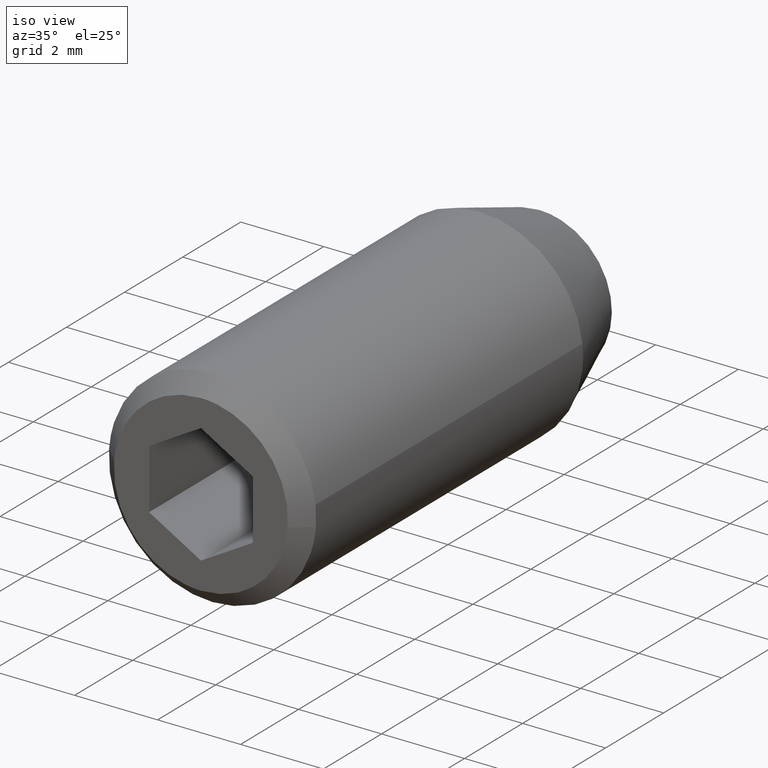
[diagram: clean part render]
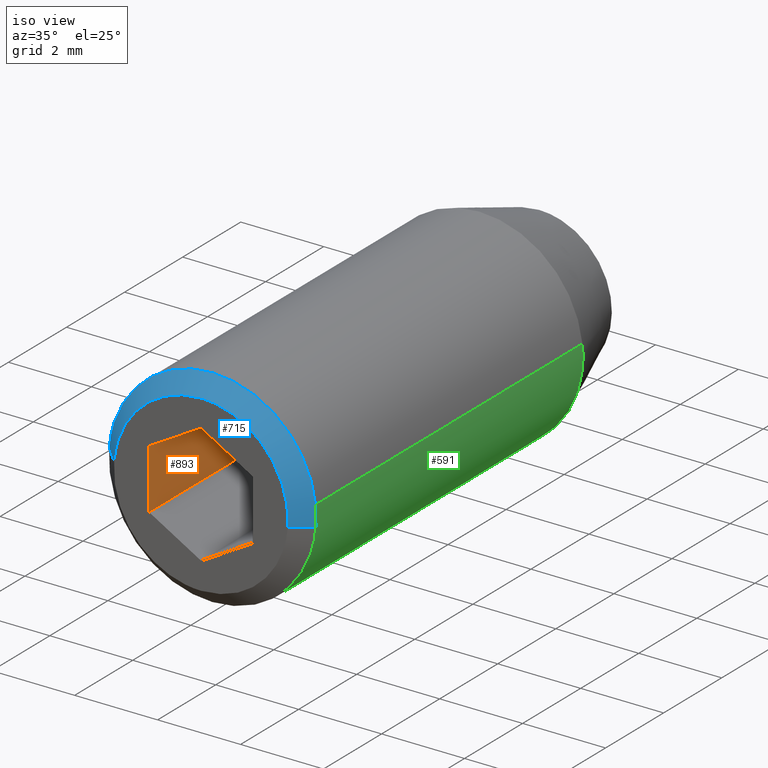
[diagram: same view with three faces highlighted in distinct colors, each labeled with its STEP entity id]
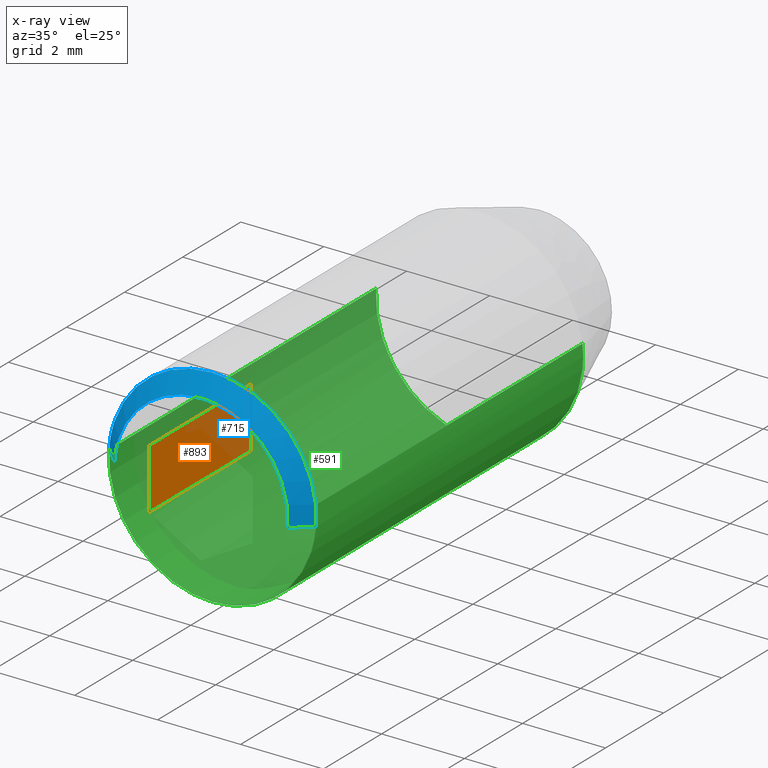
[diagram: x-ray of the same camera — body ghosted, the three highlighted faces saturated]
A machine part, iso view with three faces highlighted in distinct colors.
The next image is the same camera in x-ray (body ghosted, the three faces saturated) — at least one of them is partly hidden behind the body in this view.
Their STEP definitions:

[orange] entity #893 — the highlighted face is a freeform B-spline surface patch.
#735=CARTESIAN_POINT('',(-1.250000000000000,-8.149999999999999,0.721688000000000));
#736=VERTEX_POINT('',#735);
#742=CARTESIAN_POINT('',(-1.250000000000000,-8.149999999999999,-0.721688000000000));
#743=VERTEX_POINT('',#742);
#744=CARTESIAN_POINT('',(-1.250000000000000,-8.149999999999999,0.721688000000000));
#745=CARTESIAN_POINT('',(-1.250000000000000,-8.149999999999999,-0.721688000000000));
#746=QUASI_UNIFORM_CURVE('',1,(#744,#745),.UNSPECIFIED.,.F.,.U.);
#747=EDGE_CURVE('',#736,#743,#746,.T.);
#855=CARTESIAN_POINT('',(-1.250000000000000,-11.650000000000000,-0.721688000000000));
#856=VERTEX_POINT('',#855);
#864=CARTESIAN_POINT('',(-1.250000000000000,-8.149999999999999,-0.721688000000000));
#865=CARTESIAN_POINT('',(-1.250000000000000,-11.650000000000000,-0.721688000000000));
#866=QUASI_UNIFORM_CURVE('',1,(#864,#865),.UNSPECIFIED.,.F.,.U.);
#867=EDGE_CURVE('',#743,#856,#866,.T.);
#872=CARTESIAN_POINT('',(-1.250000000000000,-11.824824611454829,-0.793784596146942));
#873=CARTESIAN_POINT('',(-1.250000000000000,-11.824824611454829,0.793784557432581));
#874=CARTESIAN_POINT('',(-1.250000000000000,-7.975174668819083,-0.793784596146942));
#875=CARTESIAN_POINT('',(-1.250000000000000,-7.975174668819083,0.793784557432581));
#876=B_SPLINE_SURFACE_WITH_KNOTS('',1,1,((#872,#874),(#873,#875)),.UNSPECIFIED.,.F.,.F.,.U.,(2,2),(2,2),(0.041708353571221,0.958291624077037),(0.0,3.849649942635750),.UNSPECIFIED.);
#877=CARTESIAN_POINT('',(-1.250000000000000,-11.650000000000000,0.721688000000000));
#878=VERTEX_POINT('',#877);
#879=CARTESIAN_POINT('',(-1.250000000000000,-11.650000000000000,0.721688000000000));
#880=CARTESIAN_POINT('',(-1.250000000000000,-11.650000000000000,-0.721688000000000));
#881=QUASI_UNIFORM_CURVE('',1,(#879,#880),.UNSPECIFIED.,.F.,.U.);
#882=EDGE_CURVE('',#878,#856,#881,.T.);
#883=ORIENTED_EDGE('',*,*,#882,.T.);
#884=ORIENTED_EDGE('',*,*,#867,.F.);
#885=ORIENTED_EDGE('',*,*,#747,.F.);
#886=CARTESIAN_POINT('',(-1.250000000000000,-8.149999999999999,0.721688000000000));
#887=CARTESIAN_POINT('',(-1.250000000000000,-11.650000000000000,0.721688000000000));
#888=QUASI_UNIFORM_CURVE('',1,(#886,#887),.UNSPECIFIED.,.F.,.U.);
#889=EDGE_CURVE('',#736,#878,#888,.T.);
#890=ORIENTED_EDGE('',*,*,#889,.T.);
#891=EDGE_LOOP('',(#883,#884,#885,#890));
#892=FACE_OUTER_BOUND('',#891,.T.);
#893=ADVANCED_FACE('',(#892),#876,.F.);

[blue] entity #715 — the highlighted face is a freeform B-spline surface patch.
#453=CARTESIAN_POINT('',(2.483672983588568,-11.250000000000000,0.285251661857136));
#454=VERTEX_POINT('',#453);
#455=CARTESIAN_POINT('',(0.0,-11.250000000000000,2.500000000000000));
#456=VERTEX_POINT('',#455);
#457=CARTESIAN_POINT('',(2.483672983588568,-11.249999999999998,0.285251661857136));
#458=CARTESIAN_POINT('',(2.229307514286017,-11.249999999999996,2.500000000000000));
#459=CARTESIAN_POINT('',(0.0,-11.250000000000000,2.500000000000000));
#467=(BOUNDED_CURVE()B_SPLINE_CURVE(2,(#457,#458,#459),.UNSPECIFIED.,.F.,.U.)B_SPLINE_CURVE_WITH_KNOTS((3,3),(0.269767755877459,0.500000000000000),.UNSPECIFIED.)CURVE()GEOMETRIC_REPRESENTATION_ITEM()RATIONAL_B_SPLINE_CURVE((0.957343736458988,0.730266147777218,1.0))REPRESENTATION_ITEM(''));
#468=EDGE_CURVE('',#454,#456,#467,.T.);
#484=CARTESIAN_POINT('',(-2.492293334333711,-11.249999999997771,0.196147739336746));
#485=VERTEX_POINT('',#484);
#499=CARTESIAN_POINT('',(0.0,-11.250000000000000,2.500000000000000));
#500=CARTESIAN_POINT('',(-2.310976229113979,-11.249999999999998,2.500000000000000));
#501=CARTESIAN_POINT('',(-2.492293334333711,-11.249999999997765,0.196147739336746));
#509=(BOUNDED_CURVE()B_SPLINE_CURVE(2,(#499,#500,#501),.UNSPECIFIED.,.F.,.U.)B_SPLINE_CURVE_WITH_KNOTS((3,3),(0.500000000000000,0.736331300630435),.UNSPECIFIED.)CURVE()GEOMETRIC_REPRESENTATION_ITEM()RATIONAL_B_SPLINE_CURVE((1.0,0.723120658607929,0.969723356166948))REPRESENTATION_ITEM(''));
#510=EDGE_CURVE('',#456,#485,#509,.T.);
#537=CARTESIAN_POINT('',(2.492293334333710,-11.249999999997771,-0.196147739336747));
#538=VERTEX_POINT('',#537);
#539=CARTESIAN_POINT('',(2.492293334333709,-11.249999999997767,-0.196147739336747));
#540=CARTESIAN_POINT('',(2.500000000000000,-11.250000000000002,-0.098225267536211));
#541=CARTESIAN_POINT('',(2.500000000000000,-11.250000000000000,-5.143347E-016));
#542=CARTESIAN_POINT('',(2.500000000000000,-11.249999999999996,0.143093087569527));
#543=CARTESIAN_POINT('',(2.483672983588568,-11.249999999999998,0.285251661857136));
#551=(BOUNDED_CURVE()B_SPLINE_CURVE(2,(#539,#540,#541,#542,#543),.UNSPECIFIED.,.F.,.U.)B_SPLINE_CURVE_WITH_KNOTS((3,2,3),(0.236331300630434,0.250000000000000,0.269767755877459),.UNSPECIFIED.)CURVE()GEOMETRIC_REPRESENTATION_ITEM()RATIONAL_B_SPLINE_CURVE((0.969723356166947,0.983986122578618,1.0,0.976840633409330,0.957343736458988))REPRESENTATION_ITEM(''));
#552=EDGE_CURVE('',#538,#454,#551,.T.);
#611=CARTESIAN_POINT('',(2.093526400839668,-11.649999999999750,-0.164764101030382));
#612=VERTEX_POINT('',#611);
#613=CARTESIAN_POINT('',(2.093526400839668,-11.649999999999750,-0.164764101030382));
#614=CARTESIAN_POINT('',(2.492293334333710,-11.249999999997771,-0.196147739336747));
#615=QUASI_UNIFORM_CURVE('',1,(#613,#614),.UNSPECIFIED.,.F.,.U.);
#616=EDGE_CURVE('',#612,#538,#615,.T.);
#633=CARTESIAN_POINT('',(-2.093526400839669,-11.649999999999750,0.164764101030380));
#634=VERTEX_POINT('',#633);
#650=CARTESIAN_POINT('',(-2.093526400839669,-11.649999999999750,0.164764101030380));
#651=CARTESIAN_POINT('',(-2.492293334333711,-11.249999999997771,0.196147739336746));
#652=QUASI_UNIFORM_CURVE('',1,(#650,#651),.UNSPECIFIED.,.F.,.U.);
#653=EDGE_CURVE('',#634,#485,#652,.T.);
#660=CARTESIAN_POINT('',(-2.083557227502235,-11.660000000000000,0.163979510071196));
#661=CARTESIAN_POINT('',(-1.919577717431037,-11.660000000000002,2.247536737573431));
#662=CARTESIAN_POINT('',(0.163979510071197,-11.660000000000000,2.083557227502234));
#663=CARTESIAN_POINT('',(2.247536737573432,-11.660000000000002,1.919577717431037));
#664=CARTESIAN_POINT('',(2.083557227502235,-11.660000000000000,-0.163979510071197));
#665=CARTESIAN_POINT('',(-2.502511737003586,-11.239750000000001,0.196951945050824));
#666=CARTESIAN_POINT('',(-2.305559791952761,-11.239749999999997,2.699463682054411));
#667=CARTESIAN_POINT('',(0.196951945050825,-11.239750000000001,2.502511737003585));
#668=CARTESIAN_POINT('',(2.699463682054411,-11.239749999999997,2.305559791952761));
#669=CARTESIAN_POINT('',(2.502511737003586,-11.239750000000001,-0.196951945050825));
#677=(BOUNDED_SURFACE()B_SPLINE_SURFACE(2,1,((#660,#665),(#661,#666),(#662,#667),(#663,#668),(#664,#669)),.UNSPECIFIED.,.F.,.F.,.U.)B_SPLINE_SURFACE_WITH_KNOTS((3,2,3),(2,2),(0.0,4.159118379788251,8.318236759576502),(0.0,1.0),.UNSPECIFIED.)GEOMETRIC_REPRESENTATION_ITEM()RATIONAL_B_SPLINE_SURFACE(((1.0,1.0),(0.707106781186548,0.707106781186548),(1.0,1.0),(0.707106781186548,0.707106781186548),(1.0,1.0)))REPRESENTATION_ITEM('')SURFACE());
#678=ORIENTED_EDGE('',*,*,#552,.T.);
#679=ORIENTED_EDGE('',*,*,#468,.T.);
#680=ORIENTED_EDGE('',*,*,#510,.T.);
#681=ORIENTED_EDGE('',*,*,#653,.F.);
#682=CARTESIAN_POINT('',(0.0,-11.650000000000000,2.100000000000000));
#683=VERTEX_POINT('',#682);
#684=CARTESIAN_POINT('',(0.0,-11.650000000000000,2.100000000000000));
#685=CARTESIAN_POINT('',(-1.941220032478720,-11.650000000000002,2.100000000000001));
#686=CARTESIAN_POINT('',(-2.093526400839668,-11.649999999999755,0.164764101030380));
#694=(BOUNDED_CURVE()B_SPLINE_CURVE(2,(#684,#685,#686),.UNSPECIFIED.,.F.,.U.)B_SPLINE_CURVE_WITH_KNOTS((3,3),(0.500000000000000,0.736331300632457),.UNSPECIFIED.)CURVE()GEOMETRIC_REPRESENTATION_ITEM()RATIONAL_B_SPLINE_CURVE((1.0,0.723120658605559,0.969723356171170))REPRESENTATION_ITEM(''));
#695=EDGE_CURVE('',#683,#634,#694,.T.);
#696=ORIENTED_EDGE('',*,*,#695,.F.);
#697=CARTESIAN_POINT('',(2.093526400839668,-11.649999999999755,-0.164764101030382));
#698=CARTESIAN_POINT('',(2.100000000000001,-11.650000000000000,-0.082509224718002));
#699=CARTESIAN_POINT('',(2.100000000000000,-11.650000000000000,-5.143347E-016));
#700=CARTESIAN_POINT('',(2.100000000000000,-11.650000000000002,2.100000000000000));
#701=CARTESIAN_POINT('',(0.0,-11.650000000000000,2.100000000000000));
#709=(BOUNDED_CURVE()B_SPLINE_CURVE(2,(#697,#698,#699,#700,#701),.UNSPECIFIED.,.F.,.U.)B_SPLINE_CURVE_WITH_KNOTS((3,2,3),(0.236331300632458,0.250000000000000,0.500000000000000),.UNSPECIFIED.)CURVE()GEOMETRIC_REPRESENTATION_ITEM()RATIONAL_B_SPLINE_CURVE((0.969723356171171,0.983986122580989,1.0,0.707106781186548,1.0))REPRESENTATION_ITEM(''));
#710=EDGE_CURVE('',#612,#683,#709,.T.);
#711=ORIENTED_EDGE('',*,*,#710,.F.);
#712=ORIENTED_EDGE('',*,*,#616,.T.);
#713=EDGE_LOOP('',(#678,#679,#680,#681,#696,#711,#712));
#714=FACE_OUTER_BOUND('',#713,.T.);
#715=ADVANCED_FACE('',(#714),#677,.T.);

[green] entity #591 — the highlighted face is a freeform B-spline surface patch.
#309=CARTESIAN_POINT('',(-2.495337114130603,-2.060607997454079,0.152619403109031));
#310=VERTEX_POINT('',#309);
#331=CARTESIAN_POINT('',(2.483673312039143,-2.060608000000000,0.285248802024170));
#332=VERTEX_POINT('',#331);
#346=CARTESIAN_POINT('',(0.0,-2.060608000000000,-2.500000000000000));
#347=VERTEX_POINT('',#346);
#348=CARTESIAN_POINT('',(0.0,-2.060608000000000,-2.500000000000000));
#349=CARTESIAN_POINT('',(2.500000000000000,-2.060607999999999,-2.500000000000000));
#350=CARTESIAN_POINT('',(2.500000000000000,-2.060608000000000,-5.143347E-016));
#351=CARTESIAN_POINT('',(2.500000000000000,-2.060608000000000,0.143091643534892));
#352=CARTESIAN_POINT('',(2.483673312039144,-2.060608000000000,0.285248802024170));
#360=(BOUNDED_CURVE()B_SPLINE_CURVE(2,(#348,#349,#350,#351,#352),.UNSPECIFIED.,.F.,.U.)B_SPLINE_CURVE_WITH_KNOTS((3,2,3),(0.0,0.250000000000000,0.269767561009632),.UNSPECIFIED.)CURVE()GEOMETRIC_REPRESENTATION_ITEM()RATIONAL_B_SPLINE_CURVE((1.0,0.707106781186548,1.0,0.976840861711190,0.957344120854817))REPRESENTATION_ITEM(''));
#361=EDGE_CURVE('',#347,#332,#360,.T.);
#363=CARTESIAN_POINT('',(-2.027433932426558,-2.060608000000052,-1.462706959594258));
#364=VERTEX_POINT('',#363);
#365=CARTESIAN_POINT('',(-2.027433932426558,-2.060608000000051,-1.462706959594258));
#366=CARTESIAN_POINT('',(-1.279071322393233,-2.060608000000000,-2.500000000000000));
#367=CARTESIAN_POINT('',(0.0,-2.060608000000000,-2.500000000000000));
#375=(BOUNDED_CURVE()B_SPLINE_CURVE(2,(#365,#366,#367),.UNSPECIFIED.,.F.,.U.)B_SPLINE_CURVE_WITH_KNOTS((3,3),(0.850743050382060,1.0),.UNSPECIFIED.)CURVE()GEOMETRIC_REPRESENTATION_ITEM()RATIONAL_B_SPLINE_CURVE((0.859068214727317,0.825134606384498,1.0))REPRESENTATION_ITEM(''));
#376=EDGE_CURVE('',#364,#347,#375,.T.);
#416=CARTESIAN_POINT('',(-2.495337114130602,-2.060607997454079,0.152619403109031));
#417=CARTESIAN_POINT('',(-2.500000000000000,-2.060608000000000,0.076380932683022));
#418=CARTESIAN_POINT('',(-2.500000000000000,-2.060608000000000,-5.143347E-016));
#419=CARTESIAN_POINT('',(-2.500000000000001,-2.060608000000000,-0.807690946696382));
#420=CARTESIAN_POINT('',(-2.027433932426558,-2.060608000000052,-1.462706959594259));
#428=(BOUNDED_CURVE()B_SPLINE_CURVE(2,(#416,#417,#418,#419,#420),.UNSPECIFIED.,.F.,.U.)B_SPLINE_CURVE_WITH_KNOTS((3,2,3),(0.739333096780675,0.750000000000000,0.850743050382061),.UNSPECIFIED.)CURVE()GEOMETRIC_REPRESENTATION_ITEM()RATIONAL_B_SPLINE_CURVE((0.976072330015430,0.987502945525281,1.0,0.881972174802049,0.859068214727317))REPRESENTATION_ITEM(''));
#429=EDGE_CURVE('',#310,#364,#428,.T.);
#453=CARTESIAN_POINT('',(2.483672983588568,-11.250000000000000,0.285251661857136));
#454=VERTEX_POINT('',#453);
#470=CARTESIAN_POINT('',(2.483673312039143,-2.060608000000000,0.285248802024170));
#471=CARTESIAN_POINT('',(2.483672983588568,-11.250000000000000,0.285251661857136));
#472=QUASI_UNIFORM_CURVE('',1,(#470,#471),.UNSPECIFIED.,.F.,.U.);
#473=EDGE_CURVE('',#332,#454,#472,.T.);
#477=CARTESIAN_POINT('',(-2.495337011681478,-11.250000000000000,0.152621093340608));
#478=VERTEX_POINT('',#477);
#479=CARTESIAN_POINT('',(-2.495337114130603,-2.060607997454079,0.152619403109031));
#480=CARTESIAN_POINT('',(-2.495337011681478,-11.250000000000000,0.152621093340608));
#481=QUASI_UNIFORM_CURVE('',1,(#479,#480),.UNSPECIFIED.,.F.,.U.);
#482=EDGE_CURVE('',#310,#478,#481,.T.);
#515=CARTESIAN_POINT('',(-2.495336996054667,-1.830873199999999,0.152621348837142));
#516=CARTESIAN_POINT('',(-2.647958344891809,-1.830873200000000,-2.342715647217526));
#517=CARTESIAN_POINT('',(-0.152621348837143,-1.830873199999999,-2.495336996054667));
#518=CARTESIAN_POINT('',(2.342715647217524,-1.830873200000000,-2.647958344891810));
#519=CARTESIAN_POINT('',(2.495336996054667,-1.830873199999999,-0.152621348837143));
#520=CARTESIAN_POINT('',(2.508759095986944,-1.830873199999999,0.066828045241366));
#521=CARTESIAN_POINT('',(2.483672983589284,-1.830873199999999,0.285251661850900));
#522=CARTESIAN_POINT('',(-2.495336996054667,-11.485478170000000,0.152621348837142));
#523=CARTESIAN_POINT('',(-2.647958344891809,-11.485478170000002,-2.342715647217526));
#524=CARTESIAN_POINT('',(-0.152621348837143,-11.485478170000000,-2.495336996054667));
#525=CARTESIAN_POINT('',(2.342715647217524,-11.485478170000002,-2.647958344891810));
#526=CARTESIAN_POINT('',(2.495336996054667,-11.485478170000000,-0.152621348837143));
#527=CARTESIAN_POINT('',(2.508759095986944,-11.485478170000004,0.066828045241366));
#528=CARTESIAN_POINT('',(2.483672983589284,-11.485478170000007,0.285251661850900));
#536=(BOUNDED_SURFACE()B_SPLINE_SURFACE(2,1,((#515,#522),(#516,#523),(#517,#524),(#518,#525),(#519,#526),(#520,#527),(#521,#528)),.UNSPECIFIED.,.F.,.F.,.U.)B_SPLINE_SURFACE_WITH_KNOTS((3,2,2,3),(2,2),(0.0,4.142135623730949,8.284271247461899,8.781327522309613),(0.0,9.654604970000003),.UNSPECIFIED.)GEOMETRIC_REPRESENTATION_ITEM()RATIONAL_B_SPLINE_SURFACE(((1.0,1.0),(0.707106781186548,0.707106781186548),(1.0,1.0),(0.707106781186548,0.707106781186548),(1.0,1.0),(0.964852813742386,0.964852813742386),(0.938140952186599,0.938140952186599)))REPRESENTATION_ITEM('')SURFACE());
#537=CARTESIAN_POINT('',(2.492293334333710,-11.249999999997771,-0.196147739336747));
#538=VERTEX_POINT('',#537);
#539=CARTESIAN_POINT('',(2.492293334333709,-11.249999999997767,-0.196147739336747));
#540=CARTESIAN_POINT('',(2.500000000000000,-11.250000000000002,-0.098225267536211));
#541=CARTESIAN_POINT('',(2.500000000000000,-11.250000000000000,-5.143347E-016));
#542=CARTESIAN_POINT('',(2.500000000000000,-11.249999999999996,0.143093087569527));
#543=CARTESIAN_POINT('',(2.483672983588568,-11.249999999999998,0.285251661857136));
#551=(BOUNDED_CURVE()B_SPLINE_CURVE(2,(#539,#540,#541,#542,#543),.UNSPECIFIED.,.F.,.U.)B_SPLINE_CURVE_WITH_KNOTS((3,2,3),(0.236331300630434,0.250000000000000,0.269767755877459),.UNSPECIFIED.)CURVE()GEOMETRIC_REPRESENTATION_ITEM()RATIONAL_B_SPLINE_CURVE((0.969723356166947,0.983986122578618,1.0,0.976840633409330,0.957343736458988))REPRESENTATION_ITEM(''));
#552=EDGE_CURVE('',#538,#454,#551,.T.);
#553=ORIENTED_EDGE('',*,*,#552,.F.);
#554=CARTESIAN_POINT('',(0.0,-11.250000000000000,-2.500000000000000));
#555=VERTEX_POINT('',#554);
#556=CARTESIAN_POINT('',(0.0,-11.250000000000000,-2.500000000000000));
#557=CARTESIAN_POINT('',(2.310976229113971,-11.249999999999998,-2.500000000000000));
#558=CARTESIAN_POINT('',(2.492293334333709,-11.249999999997767,-0.196147739336747));
#566=(BOUNDED_CURVE()B_SPLINE_CURVE(2,(#556,#557,#558),.UNSPECIFIED.,.F.,.U.)B_SPLINE_CURVE_WITH_KNOTS((3,3),(0.0,0.236331300630434),.UNSPECIFIED.)CURVE()GEOMETRIC_REPRESENTATION_ITEM()RATIONAL_B_SPLINE_CURVE((1.0,0.723120658607930,0.969723356166947))REPRESENTATION_ITEM(''));
#567=EDGE_CURVE('',#555,#538,#566,.T.);
#568=ORIENTED_EDGE('',*,*,#567,.F.);
#569=CARTESIAN_POINT('',(-2.495337011681478,-11.250000000000000,0.152621093340608));
#570=CARTESIAN_POINT('',(-2.500000000000000,-11.250000000000002,0.076381652033552));
#571=CARTESIAN_POINT('',(-2.500000000000000,-11.250000000000000,-5.143347E-016));
#572=CARTESIAN_POINT('',(-2.500000000000000,-11.249999999999998,-2.500000000000000));
#573=CARTESIAN_POINT('',(0.0,-11.250000000000000,-2.500000000000000));
#581=(BOUNDED_CURVE()B_SPLINE_CURVE(2,(#569,#570,#571,#572,#573),.UNSPECIFIED.,.F.,.U.)B_SPLINE_CURVE_WITH_KNOTS((3,2,3),(0.739332997575960,0.750000000000000,1.0),.UNSPECIFIED.)CURVE()GEOMETRIC_REPRESENTATION_ITEM()RATIONAL_B_SPLINE_CURVE((0.976072117400684,0.987502829299728,1.0,0.707106781186548,1.0))REPRESENTATION_ITEM(''));
#582=EDGE_CURVE('',#478,#555,#581,.T.);
#583=ORIENTED_EDGE('',*,*,#582,.F.);
#584=ORIENTED_EDGE('',*,*,#482,.F.);
#585=ORIENTED_EDGE('',*,*,#429,.T.);
#586=ORIENTED_EDGE('',*,*,#376,.T.);
#587=ORIENTED_EDGE('',*,*,#361,.T.);
#588=ORIENTED_EDGE('',*,*,#473,.T.);
#589=EDGE_LOOP('',(#553,#568,#583,#584,#585,#586,#587,#588));
#590=FACE_OUTER_BOUND('',#589,.T.);
#591=ADVANCED_FACE('',(#590),#536,.T.);